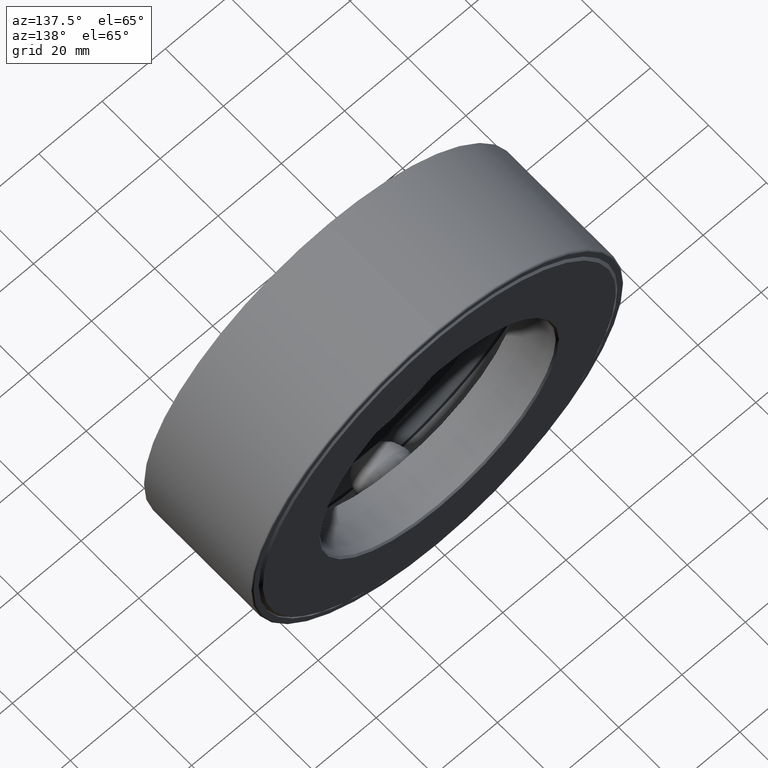
[diagram: clean part render]
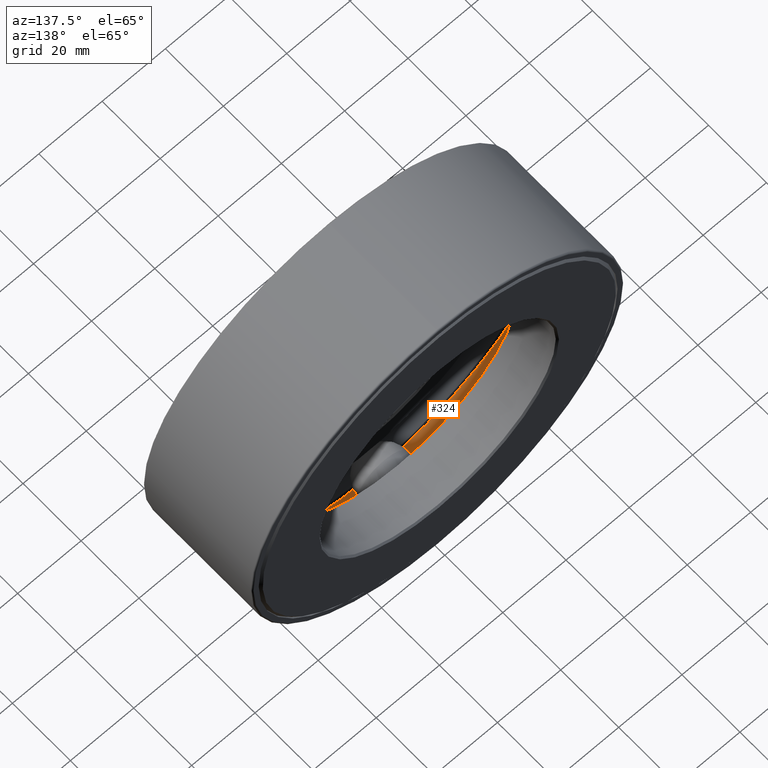
[diagram: same view with one face highlighted and labeled with its STEP entity id]
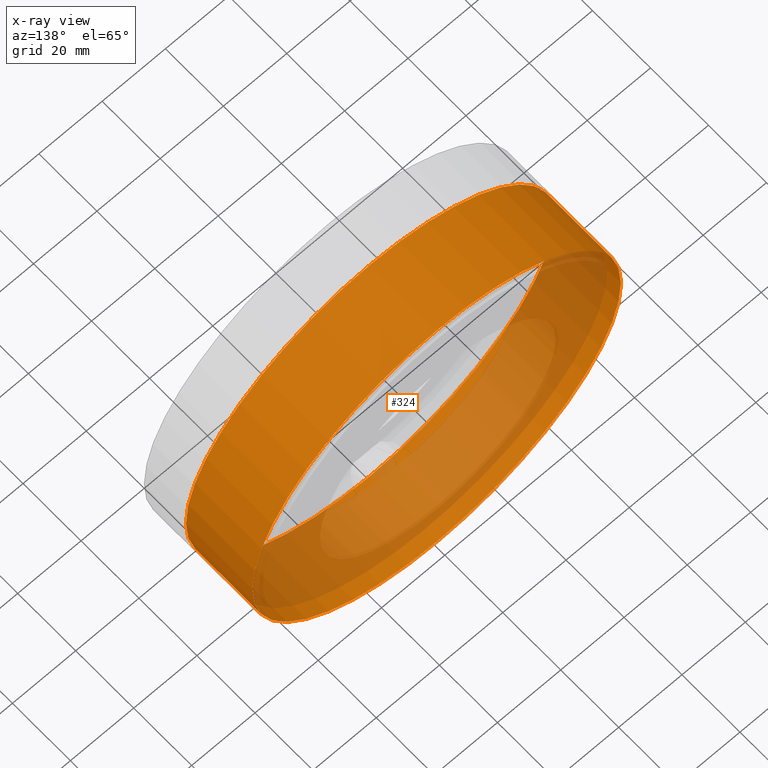
[diagram: x-ray of the same camera — body ghosted, the highlighted face saturated]
A machine part, auxiliary view. The second image highlights one B-rep face of the part: STEP entity #324.
The next image is the same camera in x-ray: the body ghosted, the highlighted face saturated — about 36% of this face is hidden behind the body in this view.
In plain terms, the highlighted cylindrical surface (bore or boss wall) has radius 58.2295 mm, axis along (-0, 1, -0).
Its self-contained STEP definition (entity closure, byte-faithful):
#109 = DIRECTION ( 'NONE',  ( -0.0000000000000000000, 1.000000000000000000, -0.0000000000000000000 ) ) ;
#115 = DIRECTION ( 'NONE',  ( 0.0000000000000000000, 0.0000000000000000000, 1.000000000000000000 ) ) ;
#120 = CARTESIAN_POINT ( 'NONE',  ( 0.0000000000000000000, 0.5624999999999998900, 0.0000000000000000000 ) ) ;
#151 = EDGE_CURVE ( 'NONE', #555, #555, #371, .T. ) ;
#155 = CARTESIAN_POINT ( 'NONE',  ( 0.0000000000000000000, 0.0000000000000000000, 0.0000000000000000000 ) ) ;
#167 = ORIENTED_EDGE ( 'NONE', *, *, #407, .F. ) ;
#182 = VERTEX_POINT ( 'NONE', #212 ) ;
#183 = CYLINDRICAL_SURFACE ( 'NONE', #585, 2.292499999999999500 ) ;
#192 = AXIS2_PLACEMENT_3D ( 'NONE', #471, #230, #292 ) ;
#194 = EDGE_LOOP ( 'NONE', ( #167 ) ) ;
#212 = CARTESIAN_POINT ( 'NONE',  ( 0.0000000000000000000, 0.5624999999999998900, 2.292499999999999500 ) ) ;
#216 = CARTESIAN_POINT ( 'NONE',  ( 0.0000000000000000000, 1.464999999999999900, 2.292499999999999500 ) ) ;
#230 = DIRECTION ( 'NONE',  ( -0.0000000000000000000, 1.000000000000000000, -0.0000000000000000000 ) ) ;
#250 = FACE_OUTER_BOUND ( 'NONE', #337, .T. ) ;
#256 = FACE_OUTER_BOUND ( 'NONE', #194, .T. ) ;
#292 = DIRECTION ( 'NONE',  ( 0.0000000000000000000, 0.0000000000000000000, 1.000000000000000000 ) ) ;
#324 = ADVANCED_FACE ( 'NONE', ( #256, #250 ), #183, .F. ) ;
#337 = EDGE_LOOP ( 'NONE', ( #352 ) ) ;
#352 = ORIENTED_EDGE ( 'NONE', *, *, #151, .T. ) ;
#371 = CIRCLE ( 'NONE', #192, 2.292499999999999500 ) ;
#397 = DIRECTION ( 'NONE',  ( 0.0000000000000000000, 0.0000000000000000000, 1.000000000000000000 ) ) ;
#402 = DIRECTION ( 'NONE',  ( -0.0000000000000000000, 1.000000000000000000, -0.0000000000000000000 ) ) ;
#407 = EDGE_CURVE ( 'NONE', #182, #182, #469, .T. ) ;
#469 = CIRCLE ( 'NONE', #556, 2.292499999999999500 ) ;
#471 = CARTESIAN_POINT ( 'NONE',  ( 0.0000000000000000000, 1.464999999999999900, 0.0000000000000000000 ) ) ;
#555 = VERTEX_POINT ( 'NONE', #216 ) ;
#556 = AXIS2_PLACEMENT_3D ( 'NONE', #120, #402, #115 ) ;
#585 = AXIS2_PLACEMENT_3D ( 'NONE', #155, #109, #397 ) ;